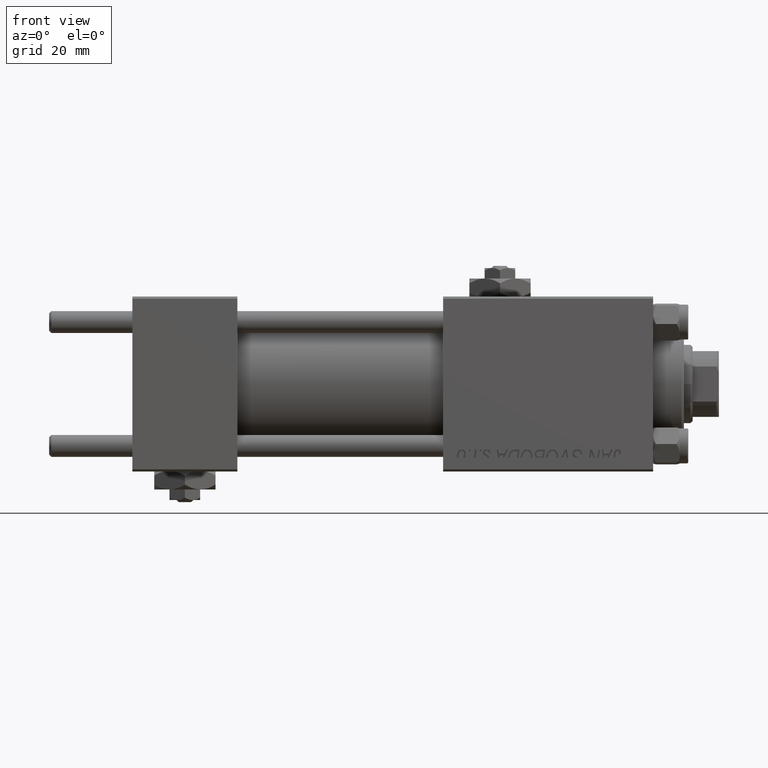
[diagram: clean part render]
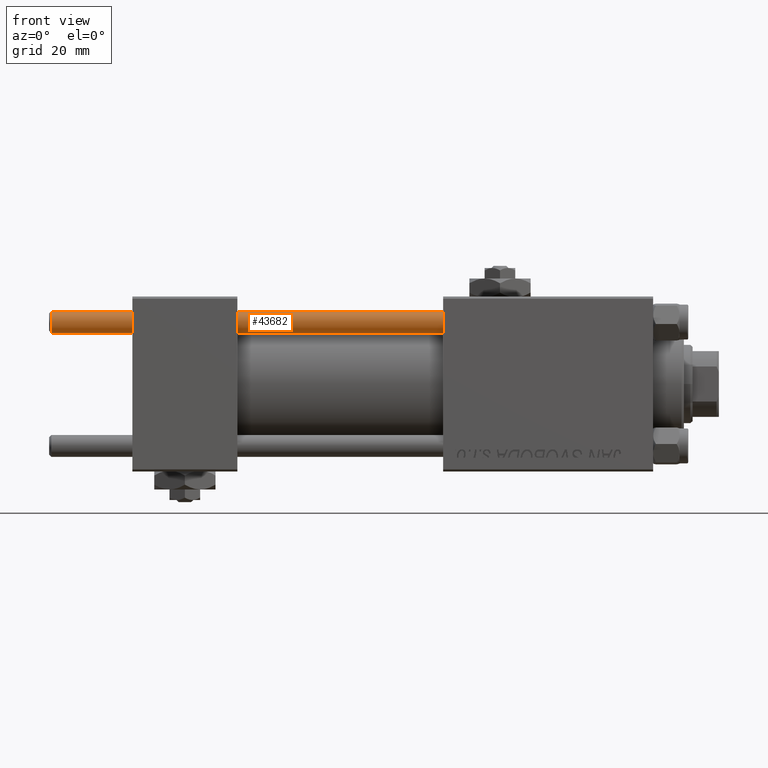
[diagram: same view with one face highlighted and labeled with its STEP entity id]
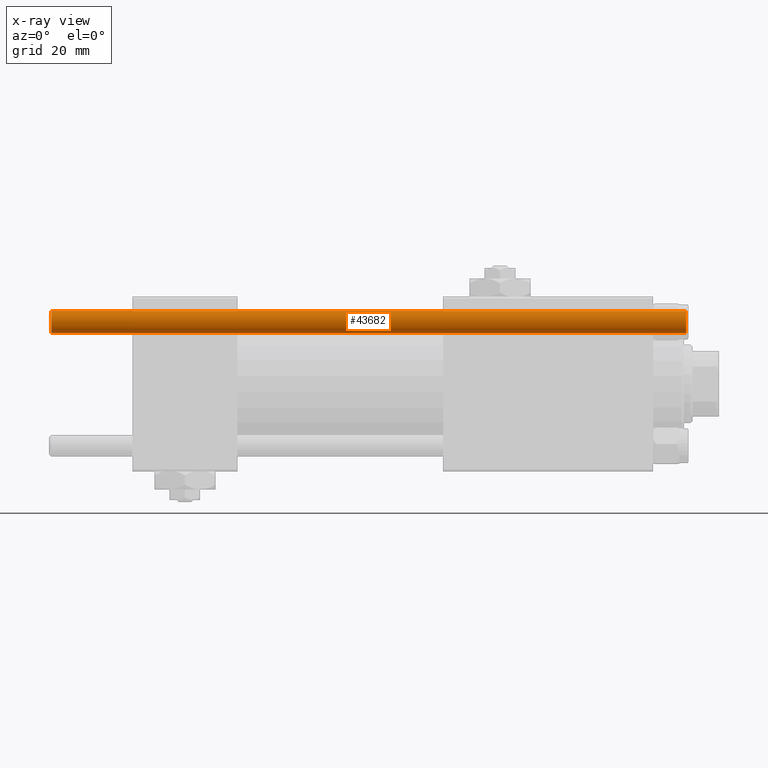
[diagram: x-ray of the same camera — body ghosted, the highlighted face saturated]
A machine part, front view. The second image highlights one B-rep face of the part: STEP entity #43682.
The next image is the same camera in x-ray: the body ghosted, the highlighted face saturated — about 0% of this face is hidden behind the body in this view.
In plain terms, the highlighted cylindrical surface (edge-blend (fillet) strip) has radius 2.5 mm, axis along (1, -0, 0).
Its self-contained STEP definition (entity closure, byte-faithful):
#2066 = CIRCLE ( 'NONE', #45644, 2.500000000000000000 ) ;
#2392 = VERTEX_POINT ( 'NONE', #38677 ) ;
#2543 = EDGE_CURVE ( 'NONE', #25051, #2392, #2066, .T. ) ;
#3737 = EDGE_CURVE ( 'NONE', #22270, #15685, #21269, .T. ) ;
#4956 = DIRECTION ( 'NONE',  ( -0.000000000000000000, -0.000000000000000000, -1.000000000000000000 ) ) ;
#5124 = VECTOR ( 'NONE', #46745, 1000.000000000000000 ) ;
#6091 = LINE ( 'NONE', #22118, #35987 ) ;
#12158 = DIRECTION ( 'NONE',  ( 0.000000000000000000, 0.000000000000000000, -1.000000000000000000 ) ) ;
#12777 = CARTESIAN_POINT ( 'NONE',  ( -2.500000000000000000, 0.000000000000000000, 0.5000000000000559552 ) ) ;
#14642 = ORIENTED_EDGE ( 'NONE', *, *, #2543, .T. ) ;
#15685 = VERTEX_POINT ( 'NONE', #12777 ) ;
#17579 = CARTESIAN_POINT ( 'NONE',  ( 0.000000000000000000, 0.000000000000000000, 145.5000000000000284 ) ) ;
#18378 = ORIENTED_EDGE ( 'NONE', *, *, #30076, .F. ) ;
#19588 = AXIS2_PLACEMENT_3D ( 'NONE', #38369, #22373, #49656 ) ;
#20450 = EDGE_CURVE ( 'NONE', #2392, #22270, #6091, .T. ) ;
#20980 = DIRECTION ( 'NONE',  ( -1.000000000000000000, 0.000000000000000000, 0.000000000000000000 ) ) ;
#21269 = CIRCLE ( 'NONE', #19588, 2.500000000000000000 ) ;
#21781 = DIRECTION ( 'NONE',  ( 1.000000000000000000, 0.000000000000000000, 0.000000000000000000 ) ) ;
#22118 = CARTESIAN_POINT ( 'NONE',  ( 2.500000000000000000, 3.061616997868383141E-16, 146.0000000000000000 ) ) ;
#22270 = VERTEX_POINT ( 'NONE', #26286 ) ;
#22373 = DIRECTION ( 'NONE',  ( -0.000000000000000000, -0.000000000000000000, 1.000000000000000000 ) ) ;
#25051 = VERTEX_POINT ( 'NONE', #25349 ) ;
#25349 = CARTESIAN_POINT ( 'NONE',  ( -2.500000000000000000, 0.000000000000000000, 145.5000000000000284 ) ) ;
#25685 = ORIENTED_EDGE ( 'NONE', *, *, #20450, .T. ) ;
#26286 = CARTESIAN_POINT ( 'NONE',  ( 2.500000000000000000, 3.061616997868383141E-16, 0.5000000000000559552 ) ) ;
#26817 = CARTESIAN_POINT ( 'NONE',  ( -2.500000000000000000, 0.000000000000000000, 146.0000000000000000 ) ) ;
#30076 = EDGE_CURVE ( 'NONE', #25051, #15685, #51189, .T. ) ;
#30397 = ORIENTED_EDGE ( 'NONE', *, *, #3737, .T. ) ;
#35987 = VECTOR ( 'NONE', #45726, 1000.000000000000000 ) ;
#38369 = CARTESIAN_POINT ( 'NONE',  ( 0.000000000000000000, 0.000000000000000000, 0.5000000000000559552 ) ) ;
#38677 = CARTESIAN_POINT ( 'NONE',  ( 2.500000000000000000, 3.061616997868383141E-16, 145.5000000000000284 ) ) ;
#38711 = EDGE_LOOP ( 'NONE', ( #14642, #25685, #30397, #18378 ) ) ;
#43682 = ADVANCED_FACE ( 'NONE', ( #49297 ), #45887, .T. ) ;
#45644 = AXIS2_PLACEMENT_3D ( 'NONE', #17579, #12158, #21781 ) ;
#45726 = DIRECTION ( 'NONE',  ( -0.000000000000000000, -0.000000000000000000, -1.000000000000000000 ) ) ;
#45887 = CYLINDRICAL_SURFACE ( 'NONE', #48401, 2.500000000000000000 ) ;
#46745 = DIRECTION ( 'NONE',  ( -0.000000000000000000, -0.000000000000000000, -1.000000000000000000 ) ) ;
#48401 = AXIS2_PLACEMENT_3D ( 'NONE', #49551, #4956, #20980 ) ;
#49297 = FACE_OUTER_BOUND ( 'NONE', #38711, .T. ) ;
#49551 = CARTESIAN_POINT ( 'NONE',  ( 0.000000000000000000, 0.000000000000000000, 146.0000000000000000 ) ) ;
#49656 = DIRECTION ( 'NONE',  ( 1.000000000000000000, 0.000000000000000000, 0.000000000000000000 ) ) ;
#51189 = LINE ( 'NONE', #26817, #5124 ) ;